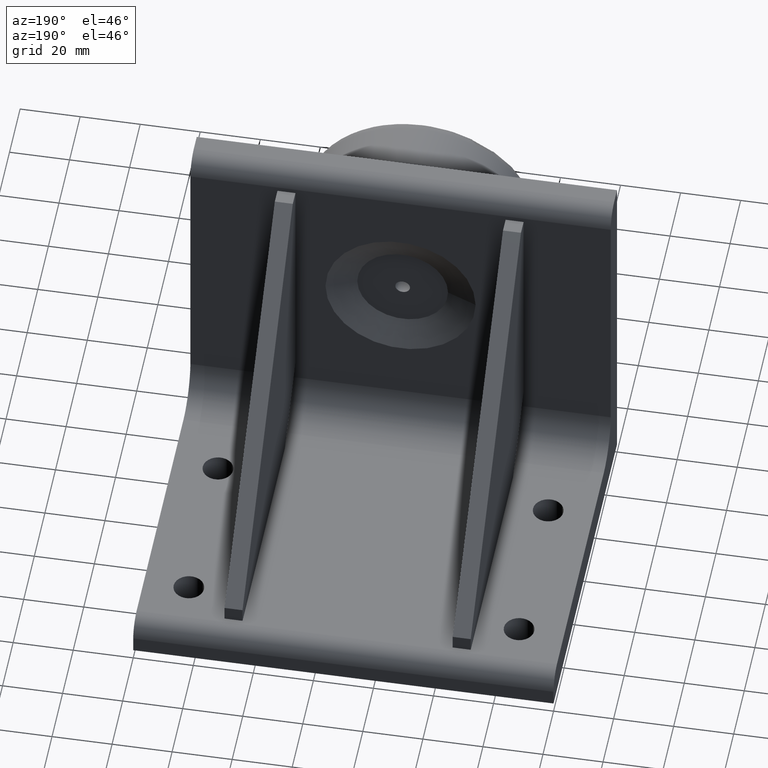
[diagram: clean part render]
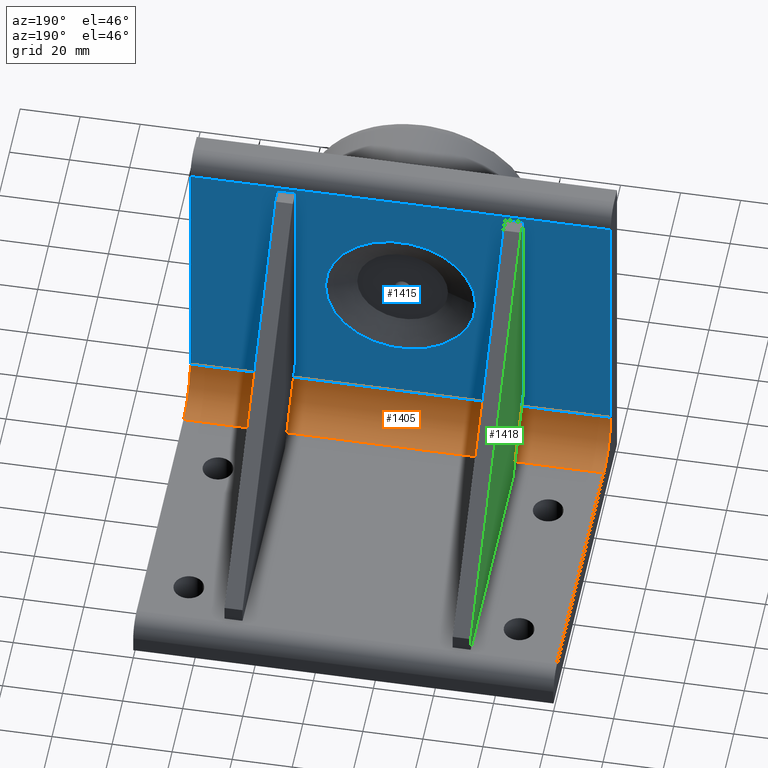
[diagram: same view with three faces highlighted in distinct colors, each labeled with its STEP entity id]
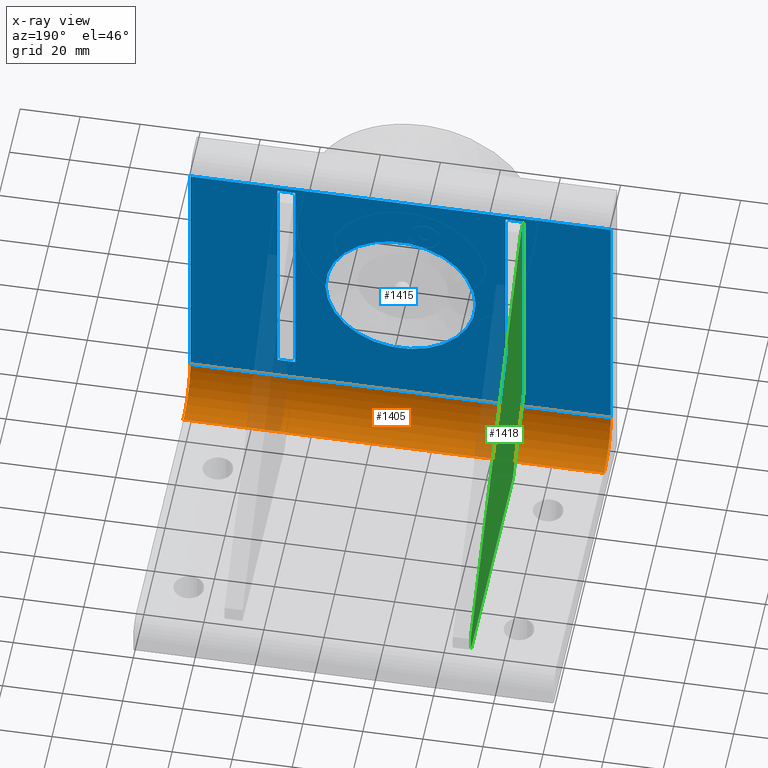
[diagram: x-ray of the same camera — body ghosted, the three highlighted faces saturated]
A machine part, auxiliary view with three faces highlighted in distinct colors.
The next image is the same camera in x-ray (body ghosted, the three faces saturated) — at least one of them is partly hidden behind the body in this view.
Their STEP definitions:

[orange] entity #1405 — the highlighted cylindrical surface (partial cylindrical patch) has radius 13 mm, axis along (1, 0, 0).
#93=CIRCLE('',#1543,13.);
#106=CIRCLE('',#1559,13.);
#125=CYLINDRICAL_SURFACE('',#1558,13.);
#182=FACE_OUTER_BOUND('',#281,.T.);
#281=EDGE_LOOP('',(#1152,#1153,#1154,#1155));
#393=LINE('',#2317,#523);
#402=LINE('',#2345,#532);
#523=VECTOR('',#1875,10.);
#532=VECTOR('',#1896,10.);
#658=VERTEX_POINT('',#2285);
#659=VERTEX_POINT('',#2287);
#671=VERTEX_POINT('',#2315);
#684=VERTEX_POINT('',#2343);
#826=EDGE_CURVE('',#659,#658,#93,.T.);
#841=EDGE_CURVE('',#658,#671,#393,.T.);
#854=EDGE_CURVE('',#671,#684,#106,.T.);
#855=EDGE_CURVE('',#684,#659,#402,.T.);
#1152=ORIENTED_EDGE('',*,*,#854,.T.);
#1153=ORIENTED_EDGE('',*,*,#855,.T.);
#1154=ORIENTED_EDGE('',*,*,#826,.T.);
#1155=ORIENTED_EDGE('',*,*,#841,.T.);
#1405=ADVANCED_FACE('',(#182),#125,.F.);
#1543=AXIS2_PLACEMENT_3D('',#2288,#1847,#1848);
#1558=AXIS2_PLACEMENT_3D('',#2342,#1892,#1893);
#1559=AXIS2_PLACEMENT_3D('',#2344,#1894,#1895);
#1847=DIRECTION('center_axis',(1.,0.,0.));
#1848=DIRECTION('ref_axis',(0.,-0.707106781186548,-0.707106781186548));
#1875=DIRECTION('',(-1.,0.,0.));
#1892=DIRECTION('center_axis',(1.,0.,0.));
#1893=DIRECTION('ref_axis',(0.,-0.707106781186548,-0.707106781186548));
#1894=DIRECTION('center_axis',(-1.,0.,0.));
#1895=DIRECTION('ref_axis',(0.,-0.707106781186548,-0.707106781186548));
#1896=DIRECTION('',(1.,0.,0.));
#2285=CARTESIAN_POINT('',(140.,25.,12.));
#2287=CARTESIAN_POINT('',(140.,12.,25.));
#2288=CARTESIAN_POINT('Origin',(140.,25.,25.));
#2315=CARTESIAN_POINT('',(0.,25.,12.));
#2317=CARTESIAN_POINT('',(0.,25.,12.));
#2342=CARTESIAN_POINT('Origin',(0.,25.,25.));
#2343=CARTESIAN_POINT('',(0.,12.,25.));
#2344=CARTESIAN_POINT('Origin',(0.,25.,25.));
#2345=CARTESIAN_POINT('',(0.,12.,25.));

[blue] entity #1415 — the highlighted planar face has unit normal (0, 1, 0).
#44=FACE_BOUND('',#292,.T.);
#45=FACE_BOUND('',#293,.T.);
#46=FACE_BOUND('',#294,.T.);
#87=CIRCLE('',#1536,25.);
#88=CIRCLE('',#1537,25.);
#192=FACE_OUTER_BOUND('',#291,.T.);
#291=EDGE_LOOP('',(#1201,#1202,#1203,#1204));
#292=EDGE_LOOP('',(#1205,#1206,#1207,#1208));
#293=EDGE_LOOP('',(#1209,#1210,#1211,#1212));
#294=EDGE_LOOP('',(#1213,#1214));
#387=LINE('',#2289,#517);
#402=LINE('',#2345,#532);
#405=LINE('',#2356,#535);
#410=LINE('',#2364,#540);
#415=LINE('',#2376,#545);
#416=LINE('',#2378,#546);
#417=LINE('',#2380,#547);
#418=LINE('',#2381,#548);
#419=LINE('',#2384,#549);
#420=LINE('',#2386,#550);
#421=LINE('',#2388,#551);
#422=LINE('',#2389,#552);
#517=VECTOR('',#1849,10.);
#532=VECTOR('',#1896,10.);
#535=VECTOR('',#1909,10.);
#540=VECTOR('',#1918,10.);
#545=VECTOR('',#1933,10.);
#546=VECTOR('',#1934,10.);
#547=VECTOR('',#1935,10.);
#548=VECTOR('',#1936,10.);
#549=VECTOR('',#1937,10.);
#550=VECTOR('',#1938,10.);
#551=VECTOR('',#1939,10.);
#552=VECTOR('',#1940,10.);
#647=VERTEX_POINT('',#2262);
#648=VERTEX_POINT('',#2263);
#652=VERTEX_POINT('',#2273);
#659=VERTEX_POINT('',#2287);
#684=VERTEX_POINT('',#2343);
#686=VERTEX_POINT('',#2353);
#689=VERTEX_POINT('',#2374);
#690=VERTEX_POINT('',#2375);
#691=VERTEX_POINT('',#2377);
#692=VERTEX_POINT('',#2379);
#693=VERTEX_POINT('',#2382);
#694=VERTEX_POINT('',#2383);
#695=VERTEX_POINT('',#2385);
#696=VERTEX_POINT('',#2387);
#814=EDGE_CURVE('',#647,#648,#87,.T.);
#815=EDGE_CURVE('',#648,#647,#88,.T.);
#827=EDGE_CURVE('',#652,#659,#387,.T.);
#855=EDGE_CURVE('',#684,#659,#402,.T.);
#860=EDGE_CURVE('',#686,#684,#405,.T.);
#865=EDGE_CURVE('',#652,#686,#410,.T.);
#870=EDGE_CURVE('',#689,#690,#415,.T.);
#871=EDGE_CURVE('',#690,#691,#416,.T.);
#872=EDGE_CURVE('',#691,#692,#417,.T.);
#873=EDGE_CURVE('',#692,#689,#418,.T.);
#874=EDGE_CURVE('',#693,#694,#419,.T.);
#875=EDGE_CURVE('',#694,#695,#420,.T.);
#876=EDGE_CURVE('',#695,#696,#421,.T.);
#877=EDGE_CURVE('',#696,#693,#422,.T.);
#1201=ORIENTED_EDGE('',*,*,#865,.F.);
#1202=ORIENTED_EDGE('',*,*,#827,.T.);
#1203=ORIENTED_EDGE('',*,*,#855,.F.);
#1204=ORIENTED_EDGE('',*,*,#860,.F.);
#1205=ORIENTED_EDGE('',*,*,#870,.T.);
#1206=ORIENTED_EDGE('',*,*,#871,.T.);
#1207=ORIENTED_EDGE('',*,*,#872,.T.);
#1208=ORIENTED_EDGE('',*,*,#873,.T.);
#1209=ORIENTED_EDGE('',*,*,#874,.T.);
#1210=ORIENTED_EDGE('',*,*,#875,.T.);
#1211=ORIENTED_EDGE('',*,*,#876,.T.);
#1212=ORIENTED_EDGE('',*,*,#877,.T.);
#1213=ORIENTED_EDGE('',*,*,#814,.T.);
#1214=ORIENTED_EDGE('',*,*,#815,.T.);
#1341=PLANE('',#1571);
#1415=ADVANCED_FACE('',(#192,#44,#45,#46),#1341,.T.);
#1536=AXIS2_PLACEMENT_3D('',#2264,#1827,#1828);
#1537=AXIS2_PLACEMENT_3D('',#2265,#1829,#1830);
#1571=AXIS2_PLACEMENT_3D('',#2373,#1931,#1932);
#1827=DIRECTION('center_axis',(0.,-1.,-2.87835598976892E-16));
#1828=DIRECTION('ref_axis',(1.,0.,0.));
#1829=DIRECTION('center_axis',(0.,-1.,-2.87835598976892E-16));
#1830=DIRECTION('ref_axis',(1.,0.,0.));
#1849=DIRECTION('',(0.,2.87835598976892E-16,-1.));
#1896=DIRECTION('',(1.,0.,0.));
#1909=DIRECTION('',(0.,2.87835598976892E-16,-1.));
#1918=DIRECTION('',(-1.,0.,0.));
#1931=DIRECTION('center_axis',(0.,1.,2.87835598976892E-16));
#1932=DIRECTION('ref_axis',(0.,-2.87835598976892E-16,1.));
#1933=DIRECTION('',(-1.,6.38889756997608E-48,-2.21963426090634E-32));
#1934=DIRECTION('',(2.21963426090634E-32,2.87835598976892E-16,-1.));
#1935=DIRECTION('',(1.,-6.38889756997609E-48,2.21963426090634E-32));
#1936=DIRECTION('',(-2.21963426090634E-32,-2.87835598976892E-16,1.));
#1937=DIRECTION('',(-1.,-2.35044908431219E-47,8.16594296420187E-32));
#1938=DIRECTION('',(-8.16594296420187E-32,2.87835598976892E-16,-1.));
#1939=DIRECTION('',(1.,2.35044908431218E-47,-8.16594296420184E-32));
#1940=DIRECTION('',(8.16594296420187E-32,-2.87835598976892E-16,1.));
#2262=CARTESIAN_POINT('',(95.,12.,70.));
#2263=CARTESIAN_POINT('',(45.,12.,70.));
#2264=CARTESIAN_POINT('Origin',(70.,12.,70.));
#2265=CARTESIAN_POINT('Origin',(70.,12.,70.));
#2273=CARTESIAN_POINT('',(140.,12.,113.5));
#2287=CARTESIAN_POINT('',(140.,12.,25.));
#2289=CARTESIAN_POINT('',(140.,12.,120.));
#2343=CARTESIAN_POINT('',(0.,12.,25.));
#2345=CARTESIAN_POINT('',(0.,12.,25.));
#2353=CARTESIAN_POINT('',(0.,12.,113.5));
#2356=CARTESIAN_POINT('',(0.,12.,120.));
#2364=CARTESIAN_POINT('',(0.,12.,113.5));
#2373=CARTESIAN_POINT('Origin',(0.,12.,120.));
#2374=CARTESIAN_POINT('',(111.,11.9999999999997,112.));
#2375=CARTESIAN_POINT('',(105.,11.9999999999997,112.));
#2376=CARTESIAN_POINT('',(55.5,12.,112.));
#2377=CARTESIAN_POINT('',(105.,11.9999999999999,32.1471862576143));
#2378=CARTESIAN_POINT('',(105.,12.,85.0197260854706));
#2379=CARTESIAN_POINT('',(111.,11.9999999999999,32.1471862576143));
#2380=CARTESIAN_POINT('',(55.5,12.,32.1471862576142));
#2381=CARTESIAN_POINT('',(111.,12.,85.0197260854706));
#2382=CARTESIAN_POINT('',(35.,11.9999999999997,112.));
#2383=CARTESIAN_POINT('',(29.,11.9999999999997,112.));
#2384=CARTESIAN_POINT('',(17.5,12.,112.));
#2385=CARTESIAN_POINT('',(29.,12.,32.1471862576143));
#2386=CARTESIAN_POINT('',(29.,12.,85.0197260854706));
#2387=CARTESIAN_POINT('',(35.,12.,32.1471862576143));
#2388=CARTESIAN_POINT('',(17.5,12.,32.1471862576143));
#2389=CARTESIAN_POINT('',(35.,12.,85.0197260854706));

[green] entity #1418 — the highlighted planar face has unit normal (-1, -0, 0).
#195=FACE_OUTER_BOUND('',#298,.T.);
#298=EDGE_LOOP('',(#1226,#1227,#1228,#1229,#1230,#1231));
#401=LINE('',#2333,#531);
#420=LINE('',#2386,#550);
#427=LINE('',#2401,#557);
#428=LINE('',#2403,#558);
#429=LINE('',#2405,#559);
#430=LINE('',#2406,#560);
#531=VECTOR('',#1883,10.);
#550=VECTOR('',#1938,10.);
#557=VECTOR('',#1953,10.);
#558=VECTOR('',#1954,10.);
#559=VECTOR('',#1955,10.);
#560=VECTOR('',#1956,10.);
#676=VERTEX_POINT('',#2326);
#679=VERTEX_POINT('',#2331);
#694=VERTEX_POINT('',#2383);
#695=VERTEX_POINT('',#2385);
#700=VERTEX_POINT('',#2402);
#701=VERTEX_POINT('',#2404);
#849=EDGE_CURVE('',#679,#676,#401,.T.);
#875=EDGE_CURVE('',#694,#695,#420,.T.);
#883=EDGE_CURVE('',#695,#679,#427,.T.);
#884=EDGE_CURVE('',#700,#694,#428,.T.);
#885=EDGE_CURVE('',#701,#700,#429,.T.);
#886=EDGE_CURVE('',#676,#701,#430,.T.);
#1226=ORIENTED_EDGE('',*,*,#883,.F.);
#1227=ORIENTED_EDGE('',*,*,#875,.F.);
#1228=ORIENTED_EDGE('',*,*,#884,.F.);
#1229=ORIENTED_EDGE('',*,*,#885,.F.);
#1230=ORIENTED_EDGE('',*,*,#886,.F.);
#1231=ORIENTED_EDGE('',*,*,#849,.F.);
#1344=PLANE('',#1575);
#1418=ADVANCED_FACE('',(#195),#1344,.T.);
#1575=AXIS2_PLACEMENT_3D('',#2400,#1951,#1952);
#1883=DIRECTION('',(-3.25452962490755E-46,1.,2.46716227694479E-16));
#1938=DIRECTION('',(-8.16594296420187E-32,2.87835598976892E-16,-1.));
#1951=DIRECTION('center_axis',(-1.,-3.45599668927717E-46,8.16594296420187E-32));
#1952=DIRECTION('ref_axis',(8.16594296420187E-32,-4.69170109549033E-16,
1.));
#1953=DIRECTION('',(-5.77419364476974E-32,0.707106781186548,-0.707106781186547));
#1954=DIRECTION('',(1.62231219030736E-46,-1.,-2.24552694894928E-15));
#1955=DIRECTION('',(5.77419364476974E-32,-0.707106781186548,0.707106781186547));
#1956=DIRECTION('',(8.16594296420187E-32,-4.69170109549033E-16,1.));
#2326=CARTESIAN_POINT('',(29.,112.,12.));
#2331=CARTESIAN_POINT('',(29.,32.1471862576143,12.));
#2333=CARTESIAN_POINT('',(29.,31.0197260854705,12.));
#2383=CARTESIAN_POINT('',(29.,11.9999999999997,112.));
#2385=CARTESIAN_POINT('',(29.,12.,32.1471862576143));
#2386=CARTESIAN_POINT('',(29.,12.,85.0197260854706));
#2400=CARTESIAN_POINT('Origin',(29.,50.0394521709411,50.0394521709413));
#2401=CARTESIAN_POINT('',(29.,12.,32.1471862576143));
#2402=CARTESIAN_POINT('',(29.,16.9999999999997,112.));
#2403=CARTESIAN_POINT('',(29.,16.9999999999997,112.));
#2404=CARTESIAN_POINT('',(29.,112.,17.));
#2405=CARTESIAN_POINT('',(29.,112.,17.));
#2406=CARTESIAN_POINT('',(29.,112.,12.));